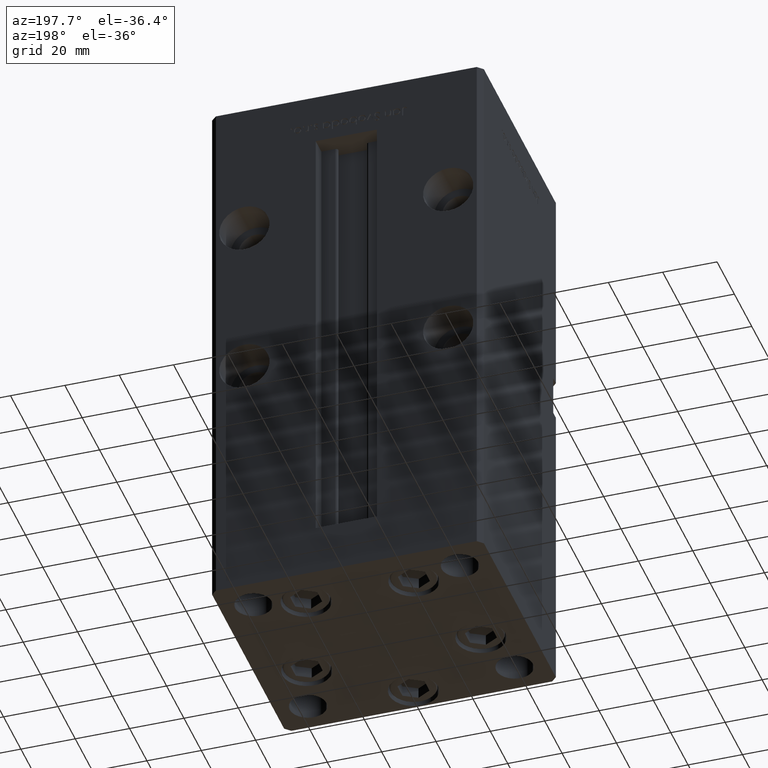
[diagram: clean part render]
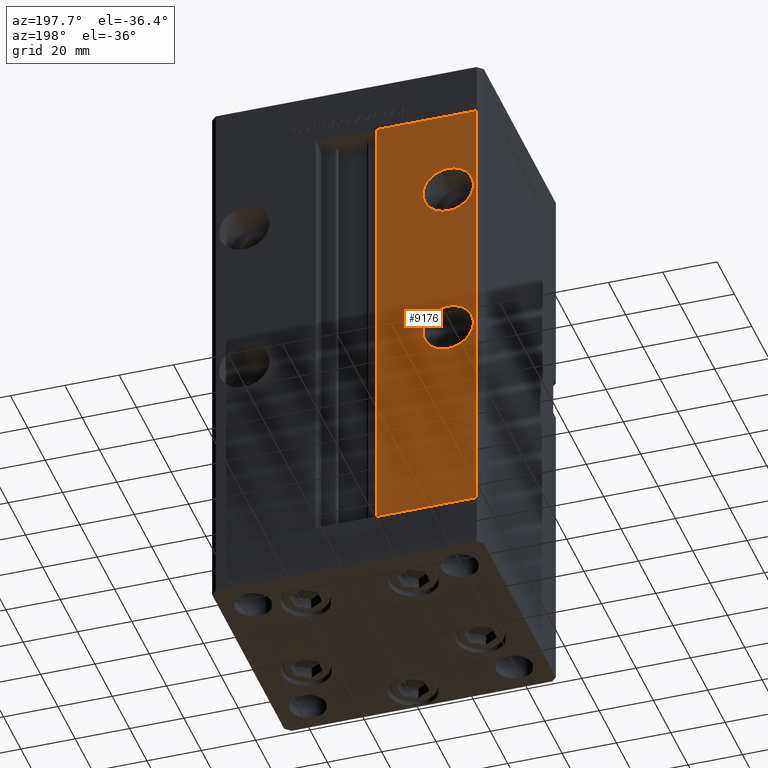
[diagram: same view with one face highlighted and labeled with its STEP entity id]
A machine part, auxiliary view. The second image highlights one B-rep face of the part: STEP entity #9176.
In plain terms, the highlighted planar face has unit normal (0, -1, 0).
Its self-contained STEP definition (entity closure, byte-faithful):
#52 = DIRECTION ( 'NONE',  ( 0.000000000000000000, 1.000000000000000000, -0.000000000000000000 ) ) ;
#699 = EDGE_CURVE ( 'NONE', #42550, #29629, #41851, .T. ) ;
#1391 = FACE_BOUND ( 'NONE', #3614, .T. ) ;
#1708 = ORIENTED_EDGE ( 'NONE', *, *, #699, .F. ) ;
#1973 = EDGE_CURVE ( 'NONE', #31970, #29629, #36905, .T. ) ;
#2273 = EDGE_CURVE ( 'NONE', #11080, #7104, #17908, .T. ) ;
#3401 = AXIS2_PLACEMENT_3D ( 'NONE', #48423, #40326, #11861 ) ;
#3614 = EDGE_LOOP ( 'NONE', ( #30252, #52532 ) ) ;
#4718 = DIRECTION ( 'NONE',  ( 0.000000000000000000, 1.000000000000000000, -0.000000000000000000 ) ) ;
#5316 = DIRECTION ( 'NONE',  ( -0.000000000000000000, -0.000000000000000000, -1.000000000000000000 ) ) ;
#7104 = VERTEX_POINT ( 'NONE', #16142 ) ;
#8476 = AXIS2_PLACEMENT_3D ( 'NONE', #26122, #13226, #29619 ) ;
#8647 = FACE_OUTER_BOUND ( 'NONE', #45189, .T. ) ;
#8901 = ORIENTED_EDGE ( 'NONE', *, *, #44532, .F. ) ;
#9176 = ADVANCED_FACE ( 'NONE', ( #1391, #17792, #8647 ), #34158, .F. ) ;
#9259 = VECTOR ( 'NONE', #5316, 1000.000000000000000 ) ;
#9415 = CARTESIAN_POINT ( 'NONE',  ( -11.24999999999999645, 43.50000000000000000, 0.000000000000000000 ) ) ;
#11080 = VERTEX_POINT ( 'NONE', #31293 ) ;
#11861 = DIRECTION ( 'NONE',  ( 0.000000000000000000, 0.000000000000000000, 1.000000000000000000 ) ) ;
#12226 = DIRECTION ( 'NONE',  ( 0.000000000000000000, 0.000000000000000000, 1.000000000000000000 ) ) ;
#13226 = DIRECTION ( 'NONE',  ( 0.000000000000000000, -1.000000000000000000, 0.000000000000000000 ) ) ;
#14041 = ORIENTED_EDGE ( 'NONE', *, *, #1973, .T. ) ;
#15598 = CARTESIAN_POINT ( 'NONE',  ( -11.24999999999999645, 43.50000000000000000, 0.000000000000000000 ) ) ;
#15742 = DIRECTION ( 'NONE',  ( 0.000000000000000000, 1.000000000000000000, 0.000000000000000000 ) ) ;
#16088 = CARTESIAN_POINT ( 'NONE',  ( -11.24999999999999645, 43.50000000000000000, 168.5000000000000000 ) ) ;
#16142 = CARTESIAN_POINT ( 'NONE',  ( -37.50000000000000000, 43.50000000000000000, 145.7500000000000284 ) ) ;
#16384 = EDGE_LOOP ( 'NONE', ( #43198, #49240 ) ) ;
#16625 = DIRECTION ( 'NONE',  ( 1.000000000000000000, 0.000000000000000000, 0.000000000000000000 ) ) ;
#17792 = FACE_BOUND ( 'NONE', #16384, .T. ) ;
#17908 = CIRCLE ( 'NONE', #41027, 9.250000000000008882 ) ;
#17964 = CARTESIAN_POINT ( 'NONE',  ( -48.00000000000000711, 43.50000000000000000, 168.5000000000000000 ) ) ;
#20038 = CARTESIAN_POINT ( 'NONE',  ( -37.50000000000000000, 43.50000000000000000, 76.50000000000001421 ) ) ;
#20182 = EDGE_CURVE ( 'NONE', #7104, #11080, #25147, .T. ) ;
#20469 = ORIENTED_EDGE ( 'NONE', *, *, #41751, .T. ) ;
#21132 = DIRECTION ( 'NONE',  ( 0.000000000000000000, 0.000000000000000000, -1.000000000000000000 ) ) ;
#21283 = VECTOR ( 'NONE', #33153, 1000.000000000000000 ) ;
#23984 = DIRECTION ( 'NONE',  ( 0.000000000000000000, 0.000000000000000000, -1.000000000000000000 ) ) ;
#25147 = CIRCLE ( 'NONE', #40524, 9.250000000000008882 ) ;
#26122 = CARTESIAN_POINT ( 'NONE',  ( -11.24999999999999645, 43.50000000000000000, 168.5000000000000000 ) ) ;
#28008 = CARTESIAN_POINT ( 'NONE',  ( -37.50000000000000000, 43.50000000000000000, 136.5000000000000000 ) ) ;
#29145 = VERTEX_POINT ( 'NONE', #32679 ) ;
#29619 = DIRECTION ( 'NONE',  ( 0.000000000000000000, -0.000000000000000000, -1.000000000000000000 ) ) ;
#29629 = VERTEX_POINT ( 'NONE', #30649 ) ;
#30252 = ORIENTED_EDGE ( 'NONE', *, *, #20182, .F. ) ;
#30649 = CARTESIAN_POINT ( 'NONE',  ( -48.00000000000000711, 43.50000000000000000, 0.000000000000000000 ) ) ;
#30824 = VERTEX_POINT ( 'NONE', #31702 ) ;
#31293 = CARTESIAN_POINT ( 'NONE',  ( -37.50000000000000000, 43.50000000000000000, 127.2500000000000000 ) ) ;
#31702 = CARTESIAN_POINT ( 'NONE',  ( -37.50000000000000000, 43.50000000000000000, 85.75000000000001421 ) ) ;
#31970 = VERTEX_POINT ( 'NONE', #15598 ) ;
#32594 = EDGE_CURVE ( 'NONE', #29145, #30824, #34243, .T. ) ;
#32679 = CARTESIAN_POINT ( 'NONE',  ( -37.50000000000000000, 43.50000000000000000, 67.25000000000000000 ) ) ;
#33030 = EDGE_CURVE ( 'NONE', #30824, #29145, #36842, .T. ) ;
#33153 = DIRECTION ( 'NONE',  ( -1.000000000000000000, 0.000000000000000000, 0.000000000000000000 ) ) ;
#33610 = DIRECTION ( 'NONE',  ( -0.000000000000000000, -0.000000000000000000, 1.000000000000000000 ) ) ;
#34158 = PLANE ( 'NONE',  #8476 ) ;
#34243 = CIRCLE ( 'NONE', #41083, 9.250000000000008882 ) ;
#36224 = VECTOR ( 'NONE', #16625, 1000.000000000000000 ) ;
#36385 = CARTESIAN_POINT ( 'NONE',  ( -11.24999999999999645, 43.50000000000000000, 0.000000000000000000 ) ) ;
#36748 = LINE ( 'NONE', #16088, #36224 ) ;
#36842 = CIRCLE ( 'NONE', #3401, 9.250000000000008882 ) ;
#36905 = LINE ( 'NONE', #36385, #21283 ) ;
#40058 = CARTESIAN_POINT ( 'NONE',  ( -48.00000000000000711, 43.50000000000000000, 168.5000000000000000 ) ) ;
#40116 = CARTESIAN_POINT ( 'NONE',  ( -11.24999999999999645, 43.50000000000000000, 168.5000000000000000 ) ) ;
#40326 = DIRECTION ( 'NONE',  ( 0.000000000000000000, 1.000000000000000000, 0.000000000000000000 ) ) ;
#40524 = AXIS2_PLACEMENT_3D ( 'NONE', #41783, #4718, #21132 ) ;
#41027 = AXIS2_PLACEMENT_3D ( 'NONE', #28008, #52, #23984 ) ;
#41083 = AXIS2_PLACEMENT_3D ( 'NONE', #20038, #15742, #12226 ) ;
#41751 = EDGE_CURVE ( 'NONE', #42550, #43345, #36748, .T. ) ;
#41783 = CARTESIAN_POINT ( 'NONE',  ( -37.50000000000000000, 43.50000000000000000, 136.5000000000000000 ) ) ;
#41851 = LINE ( 'NONE', #17964, #9259 ) ;
#42550 = VERTEX_POINT ( 'NONE', #40058 ) ;
#43198 = ORIENTED_EDGE ( 'NONE', *, *, #33030, .F. ) ;
#43345 = VERTEX_POINT ( 'NONE', #40116 ) ;
#44532 = EDGE_CURVE ( 'NONE', #31970, #43345, #46229, .T. ) ;
#45189 = EDGE_LOOP ( 'NONE', ( #20469, #8901, #14041, #1708 ) ) ;
#46229 = LINE ( 'NONE', #9415, #48319 ) ;
#48319 = VECTOR ( 'NONE', #33610, 1000.000000000000000 ) ;
#48423 = CARTESIAN_POINT ( 'NONE',  ( -37.50000000000000000, 43.50000000000000000, 76.50000000000001421 ) ) ;
#49240 = ORIENTED_EDGE ( 'NONE', *, *, #32594, .F. ) ;
#52532 = ORIENTED_EDGE ( 'NONE', *, *, #2273, .F. ) ;